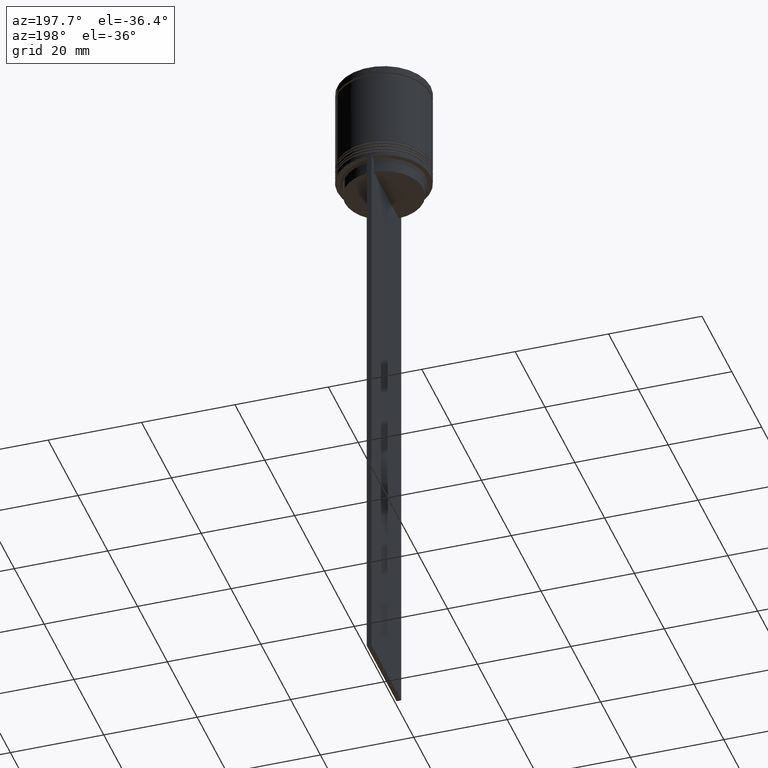
[diagram: clean part render]
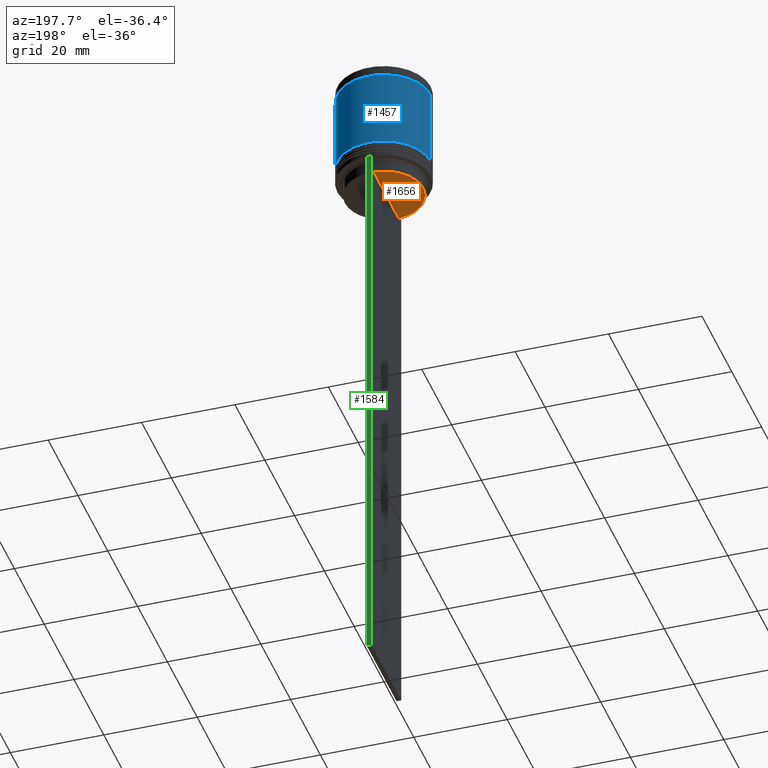
[diagram: same view with three faces highlighted in distinct colors, each labeled with its STEP entity id]
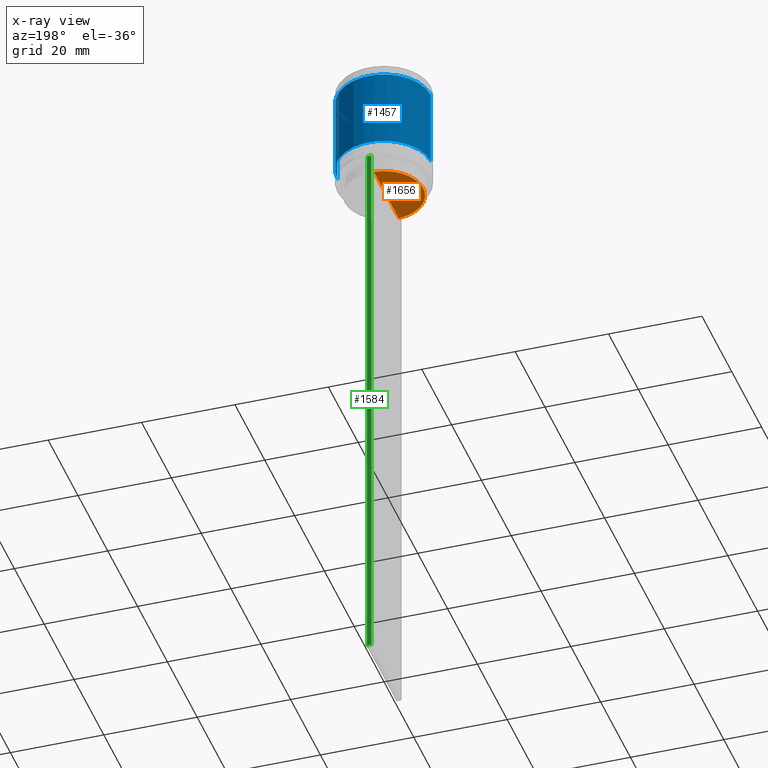
[diagram: x-ray of the same camera — body ghosted, the three highlighted faces saturated]
A machine part, auxiliary view with three faces highlighted in distinct colors.
The next image is the same camera in x-ray (body ghosted, the three faces saturated) — at least one of them is partly hidden behind the body in this view.
Their STEP definitions:

[orange] entity #1656 — the highlighted planar face has unit normal (0, -0, 1).
#69 = CARTESIAN_POINT ( 'NONE',  ( 0.000000000000000000, 8.400000000000000355, -25.50000000000000000 ) ) ;
#104 = LINE ( 'NONE', #467, #1294 ) ;
#158 = VERTEX_POINT ( 'NONE', #972 ) ;
#260 = EDGE_CURVE ( 'NONE', #158, #930, #1320, .T. ) ;
#440 = AXIS2_PLACEMENT_3D ( 'NONE', #1854, #1538, #756 ) ;
#467 = CARTESIAN_POINT ( 'NONE',  ( -0.5000000000000000000, 8.400000000000000355, -25.50000000000000000 ) ) ;
#511 = AXIS2_PLACEMENT_3D ( 'NONE', #69, #1373, #1208 ) ;
#714 = ORIENTED_EDGE ( 'NONE', *, *, #260, .F. ) ;
#756 = DIRECTION ( 'NONE',  ( 1.000000000000000000, 0.000000000000000000, 0.000000000000000000 ) ) ;
#862 = EDGE_CURVE ( 'NONE', #158, #930, #104, .T. ) ;
#930 = VERTEX_POINT ( 'NONE', #1776 ) ;
#942 = DIRECTION ( 'NONE',  ( 0.000000000000000000, -1.000000000000000000, 0.000000000000000000 ) ) ;
#972 = CARTESIAN_POINT ( 'NONE',  ( -0.5000000000000000000, 8.385105843100610912, -25.50000000000000000 ) ) ;
#978 = EDGE_LOOP ( 'NONE', ( #714, #1713 ) ) ;
#1032 = FACE_OUTER_BOUND ( 'NONE', #978, .T. ) ;
#1208 = DIRECTION ( 'NONE',  ( 1.000000000000000000, 0.000000000000000000, 0.000000000000000000 ) ) ;
#1294 = VECTOR ( 'NONE', #942, 1000.000000000000000 ) ;
#1320 = CIRCLE ( 'NONE', #440, 8.400000000000000355 ) ;
#1373 = DIRECTION ( 'NONE',  ( 0.000000000000000000, -0.000000000000000000, 1.000000000000000000 ) ) ;
#1529 = PLANE ( 'NONE',  #511 ) ;
#1538 = DIRECTION ( 'NONE',  ( -0.000000000000000000, -0.000000000000000000, 1.000000000000000000 ) ) ;
#1656 = ADVANCED_FACE ( 'NONE', ( #1032 ), #1529, .F. ) ;
#1713 = ORIENTED_EDGE ( 'NONE', *, *, #862, .T. ) ;
#1776 = CARTESIAN_POINT ( 'NONE',  ( -0.5000000000000000000, -8.385105843100610912, -25.50000000000000000 ) ) ;
#1854 = CARTESIAN_POINT ( 'NONE',  ( 0.000000000000000000, 0.000000000000000000, -25.50000000000000000 ) ) ;

[blue] entity #1457 — the highlighted cylindrical surface (partial cylindrical patch) has radius 10 mm, axis along (-0, -0, 1).
#91 = ORIENTED_EDGE ( 'NONE', *, *, #1936, .T. ) ;
#134 = CARTESIAN_POINT ( 'NONE',  ( -9.999999999999998224, 1.224646799147353059E-15, 0.000000000000000000 ) ) ;
#146 = CARTESIAN_POINT ( 'NONE',  ( -10.00000000000000355, 1.224646799147353651E-15, -19.00000000000000000 ) ) ;
#257 = EDGE_CURVE ( 'NONE', #806, #1914, #542, .T. ) ;
#361 = EDGE_LOOP ( 'NONE', ( #91, #649, #1785, #1759 ) ) ;
#411 = VERTEX_POINT ( 'NONE', #146 ) ;
#444 = DIRECTION ( 'NONE',  ( -0.000000000000000000, -0.000000000000000000, 1.000000000000000000 ) ) ;
#542 = CIRCLE ( 'NONE', #1358, 9.999999999999996447 ) ;
#550 = VECTOR ( 'NONE', #1204, 1000.000000000000000 ) ;
#573 = DIRECTION ( 'NONE',  ( 1.000000000000000000, 0.000000000000000000, 0.000000000000000000 ) ) ;
#649 = ORIENTED_EDGE ( 'NONE', *, *, #1927, .T. ) ;
#683 = CYLINDRICAL_SURFACE ( 'NONE', #1975, 9.999999999999998224 ) ;
#720 = LINE ( 'NONE', #1267, #550 ) ;
#754 = AXIS2_PLACEMENT_3D ( 'NONE', #763, #444, #1600 ) ;
#763 = CARTESIAN_POINT ( 'NONE',  ( 0.000000000000000000, 0.000000000000000000, -19.00000000000000000 ) ) ;
#771 = VERTEX_POINT ( 'NONE', #2008 ) ;
#772 = DIRECTION ( 'NONE',  ( -0.000000000000000000, -0.000000000000000000, 1.000000000000000000 ) ) ;
#803 = DIRECTION ( 'NONE',  ( -0.000000000000000000, -0.000000000000000000, 1.000000000000000000 ) ) ;
#806 = VERTEX_POINT ( 'NONE', #1245 ) ;
#954 = VECTOR ( 'NONE', #772, 1000.000000000000000 ) ;
#971 = DIRECTION ( 'NONE',  ( 1.000000000000000000, 0.000000000000000000, 0.000000000000000000 ) ) ;
#1057 = CIRCLE ( 'NONE', #754, 10.00000000000000178 ) ;
#1101 = LINE ( 'NONE', #134, #954 ) ;
#1127 = CARTESIAN_POINT ( 'NONE',  ( 0.000000000000000000, 0.000000000000000000, 0.000000000000000000 ) ) ;
#1204 = DIRECTION ( 'NONE',  ( -0.000000000000000000, -0.000000000000000000, 1.000000000000000000 ) ) ;
#1240 = CARTESIAN_POINT ( 'NONE',  ( -9.999999999999996447, 1.224646799147352862E-15, -2.199999999999995293 ) ) ;
#1245 = CARTESIAN_POINT ( 'NONE',  ( 9.999999999999996447, 0.000000000000000000, -2.199999999999995293 ) ) ;
#1267 = CARTESIAN_POINT ( 'NONE',  ( 9.999999999999998224, 0.000000000000000000, 0.000000000000000000 ) ) ;
#1358 = AXIS2_PLACEMENT_3D ( 'NONE', #1527, #1572, #573 ) ;
#1457 = ADVANCED_FACE ( 'NONE', ( #1506 ), #683, .T. ) ;
#1506 = FACE_OUTER_BOUND ( 'NONE', #361, .T. ) ;
#1527 = CARTESIAN_POINT ( 'NONE',  ( 0.000000000000000000, 0.000000000000000000, -2.199999999999995293 ) ) ;
#1572 = DIRECTION ( 'NONE',  ( -0.000000000000000000, -0.000000000000000000, 1.000000000000000000 ) ) ;
#1600 = DIRECTION ( 'NONE',  ( 1.000000000000000000, 0.000000000000000000, 0.000000000000000000 ) ) ;
#1603 = EDGE_CURVE ( 'NONE', #771, #806, #720, .T. ) ;
#1759 = ORIENTED_EDGE ( 'NONE', *, *, #1603, .F. ) ;
#1785 = ORIENTED_EDGE ( 'NONE', *, *, #257, .F. ) ;
#1914 = VERTEX_POINT ( 'NONE', #1240 ) ;
#1927 = EDGE_CURVE ( 'NONE', #411, #1914, #1101, .T. ) ;
#1936 = EDGE_CURVE ( 'NONE', #771, #411, #1057, .T. ) ;
#1975 = AXIS2_PLACEMENT_3D ( 'NONE', #1127, #803, #971 ) ;
#2008 = CARTESIAN_POINT ( 'NONE',  ( 10.00000000000000178, 0.000000000000000000, -19.00000000000000000 ) ) ;

[green] entity #1584 — the highlighted planar face has unit normal (0, -1, -0).
#20 = DIRECTION ( 'NONE',  ( -1.000000000000000000, 0.000000000000000000, 0.000000000000000000 ) ) ;
#84 = DIRECTION ( 'NONE',  ( 0.000000000000000000, 0.000000000000000000, -1.000000000000000000 ) ) ;
#195 = DIRECTION ( 'NONE',  ( 0.000000000000000000, 0.000000000000000000, -1.000000000000000000 ) ) ;
#240 = VECTOR ( 'NONE', #84, 1000.000000000000000 ) ;
#259 = VERTEX_POINT ( 'NONE', #1366 ) ;
#264 = ORIENTED_EDGE ( 'NONE', *, *, #343, .T. ) ;
#320 = ORIENTED_EDGE ( 'NONE', *, *, #799, .T. ) ;
#343 = EDGE_CURVE ( 'NONE', #259, #1074, #1731, .T. ) ;
#347 = PLANE ( 'NONE',  #1813 ) ;
#461 = ORIENTED_EDGE ( 'NONE', *, *, #1363, .F. ) ;
#510 = VECTOR ( 'NONE', #20, 1000.000000000000000 ) ;
#590 = CARTESIAN_POINT ( 'NONE',  ( 0.5000000000000000000, 9.999999999999998224, -2.475015605499213844 ) ) ;
#623 = CARTESIAN_POINT ( 'NONE',  ( -0.5000000000000000000, 9.999999999999998224, -146.5000000000000000 ) ) ;
#799 = EDGE_CURVE ( 'NONE', #1074, #1109, #906, .T. ) ;
#824 = CARTESIAN_POINT ( 'NONE',  ( 0.5000000000000000000, 9.999999999999998224, -146.5000000000000000 ) ) ;
#906 = LINE ( 'NONE', #590, #240 ) ;
#985 = DIRECTION ( 'NONE',  ( 0.000000000000000000, 0.000000000000000000, -1.000000000000000000 ) ) ;
#992 = CARTESIAN_POINT ( 'NONE',  ( 0.5000000000000000000, 9.999999999999998224, -2.475015605499213844 ) ) ;
#1074 = VERTEX_POINT ( 'NONE', #2009 ) ;
#1109 = VERTEX_POINT ( 'NONE', #1674 ) ;
#1190 = FACE_OUTER_BOUND ( 'NONE', #1853, .T. ) ;
#1356 = CARTESIAN_POINT ( 'NONE',  ( -0.5000000000000000000, 9.999999999999998224, -2.475015605499213844 ) ) ;
#1363 = EDGE_CURVE ( 'NONE', #259, #1473, #1495, .T. ) ;
#1366 = CARTESIAN_POINT ( 'NONE',  ( -0.5000000000000000000, 9.999999999999994671, -22.50000000000000000 ) ) ;
#1410 = EDGE_CURVE ( 'NONE', #1109, #1473, #1479, .T. ) ;
#1473 = VERTEX_POINT ( 'NONE', #623 ) ;
#1479 = LINE ( 'NONE', #824, #510 ) ;
#1495 = LINE ( 'NONE', #1356, #2066 ) ;
#1584 = ADVANCED_FACE ( 'NONE', ( #1190 ), #347, .F. ) ;
#1655 = DIRECTION ( 'NONE',  ( 0.000000000000000000, -1.000000000000000000, -0.000000000000000000 ) ) ;
#1674 = CARTESIAN_POINT ( 'NONE',  ( 0.5000000000000000000, 9.999999999999998224, -146.5000000000000000 ) ) ;
#1710 = CARTESIAN_POINT ( 'NONE',  ( 0.5000000000000000000, 9.999999999999998224, -22.50000000000000000 ) ) ;
#1731 = LINE ( 'NONE', #1710, #1942 ) ;
#1813 = AXIS2_PLACEMENT_3D ( 'NONE', #992, #1655, #195 ) ;
#1853 = EDGE_LOOP ( 'NONE', ( #461, #264, #320, #1988 ) ) ;
#1942 = VECTOR ( 'NONE', #2028, 1000.000000000000000 ) ;
#1988 = ORIENTED_EDGE ( 'NONE', *, *, #1410, .T. ) ;
#2009 = CARTESIAN_POINT ( 'NONE',  ( 0.5000000000000000000, 9.999999999999998224, -22.50000000000000000 ) ) ;
#2028 = DIRECTION ( 'NONE',  ( 1.000000000000000000, 0.000000000000000000, 0.000000000000000000 ) ) ;
#2066 = VECTOR ( 'NONE', #985, 1000.000000000000000 ) ;